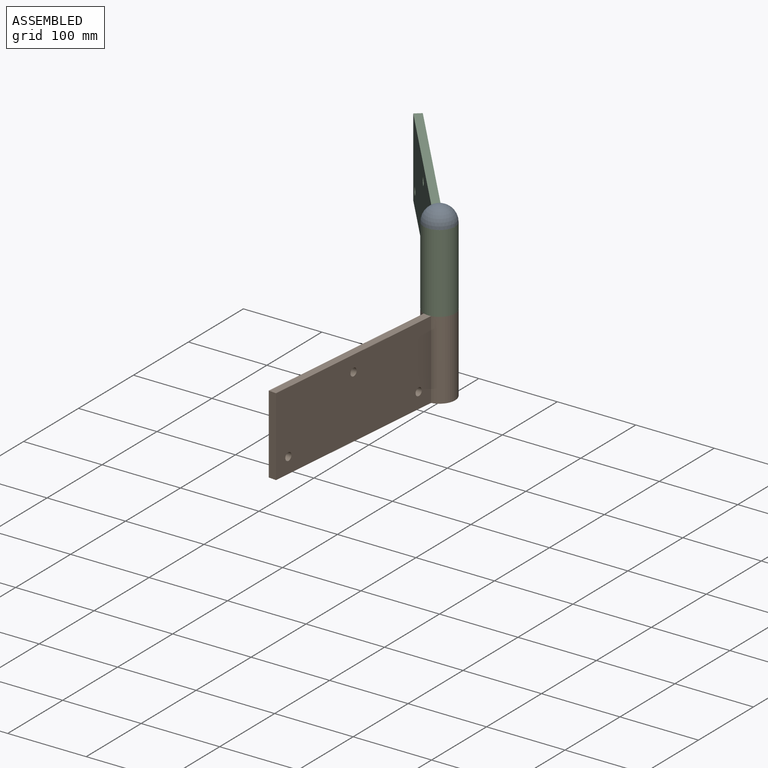
[diagram: assembled view]
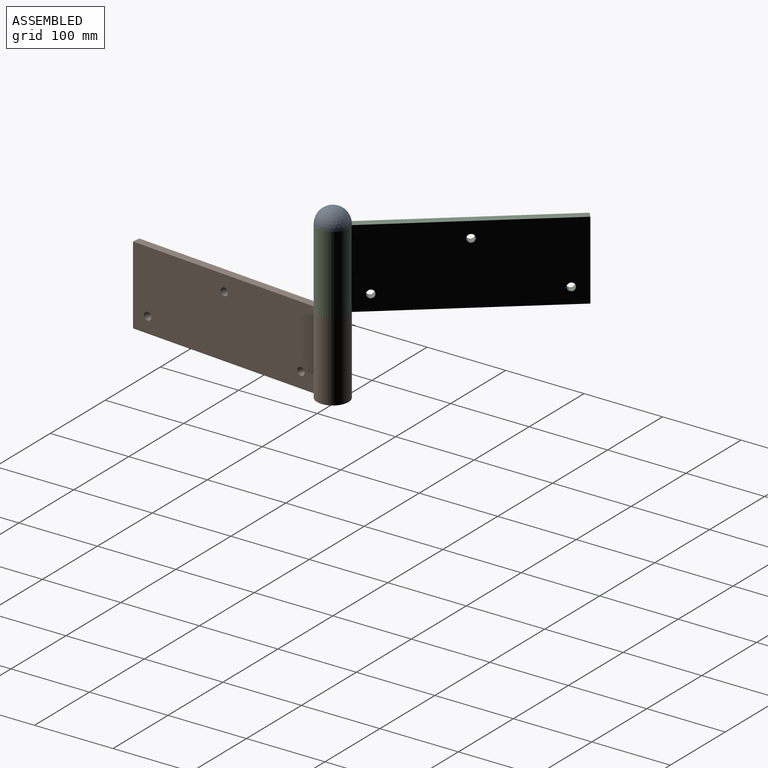
[diagram: assembled view, second angle]
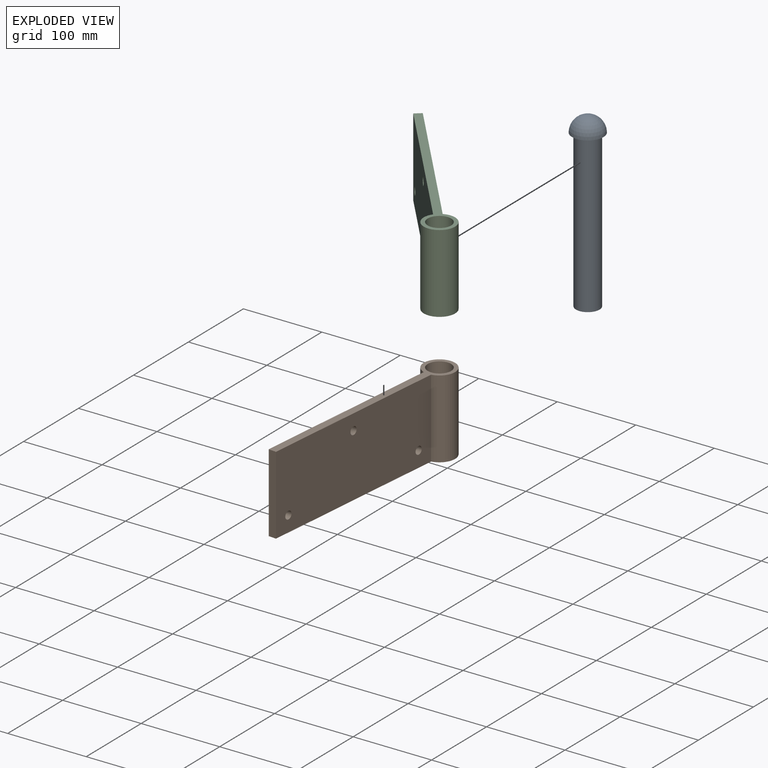
[diagram: exploded view]
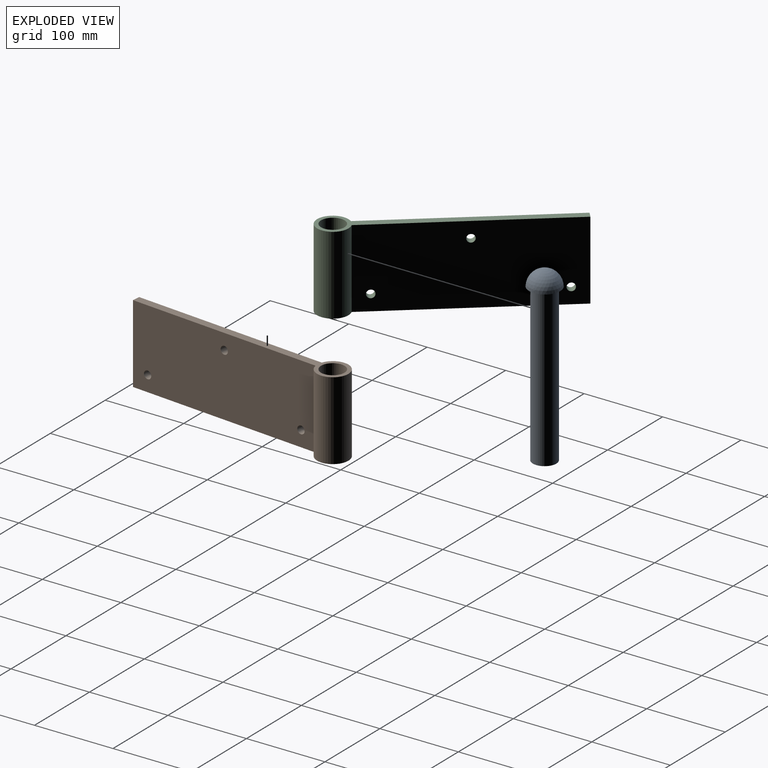
[diagram: exploded view, second angle]
ASSEMBLY  parts=3 mates=2
PART A: 4 faces, bbox 40x40x220 mm
  f0: cylinder r=15mm len=200mm, axis (0,0,-1), area 18849.6mm2, adj f1,f2
  f1: plane 30x30mm, normal (0,0,-1), area 706.9mm2, adj f0
  f2: plane 40x40mm, normal (0,0,-1), area 549.8mm2, adj f0,f3
  f3: sphere r=20mm, area 2513.3mm2, adj f2
PART B: 10 faces, bbox 289.4x100x40 mm
  f0: plane 250x100mm, normal (0,0,-1), area 24764.4mm2, adj f1,f3,f5,f6,f7,f8,f9
  f1: cylinder r=20mm len=100mm, axis (0,1,0), area 11555.6mm2, adj f0,f2,f5,f6
  f2: plane 250x100mm, normal (0,0,1), area 24764.4mm2, adj f1,f3,f5,f6,f7,f8,f9
  f3: plane 100x10mm, normal (-1,0,0), area 1000mm2, adj f0,f2,f5,f6
  f4: cylinder r=15mm len=100mm, axis (0,1,0), area 9424.8mm2, adj f5,f6
  f5: plane 289.37x40mm, normal (0,-1,0), area 3045.5mm2, adj f0,f1,f2,f3,f4
  f6: plane 289.37x40mm, normal (0,1,0), area 3045.5mm2, adj f0,f1,f2,f3,f4
  f7: cylinder r=5mm len=10mm, axis (0,0,-1), area 314.2mm2, adj f0,f2
  f8: cylinder r=5mm len=10mm, axis (0,0,-1), area 314.2mm2, adj f0,f2
  f9: cylinder r=5mm len=10mm, axis (0,0,-1), area 314.2mm2, adj f0,f2
PART C: same geometry as B
PLACE A at identity fixed
PLACE B rot(axis=(0.61,0.56,0.56),117deg) t=(3.17,-19.75,100)mm
PLACE C rot(axis=(0.83,-0.39,-0.39),100.4deg) t=(-16.23,11.69,200)mm
MATE revolute B.f1 <-> A.f0  axis (0,0,1) through (0,0,100)mm
MATE revolute C.f1 <-> A.f0  axis (0,0,1) through (0,0,200)mm
